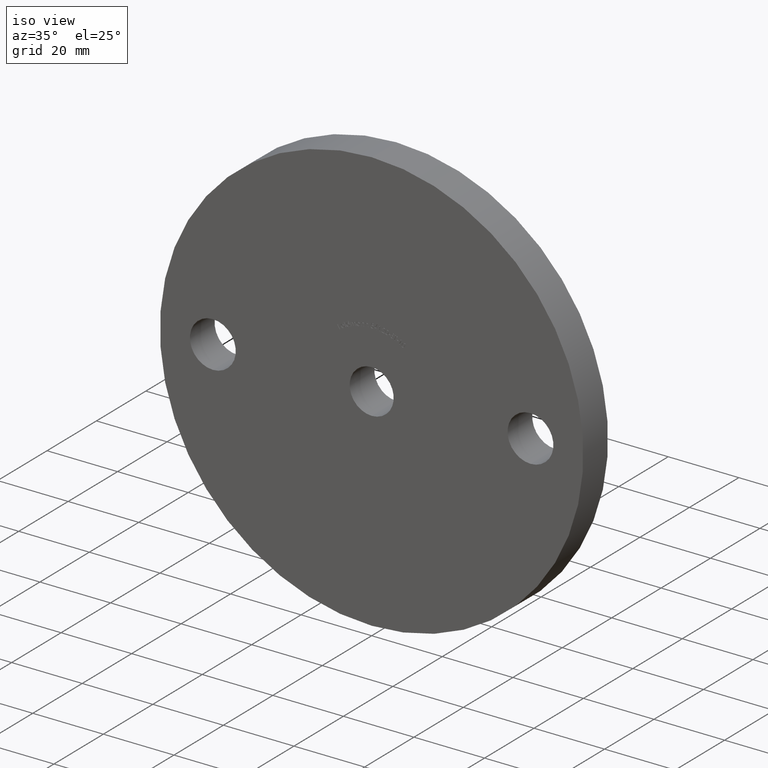
[diagram: clean part render]
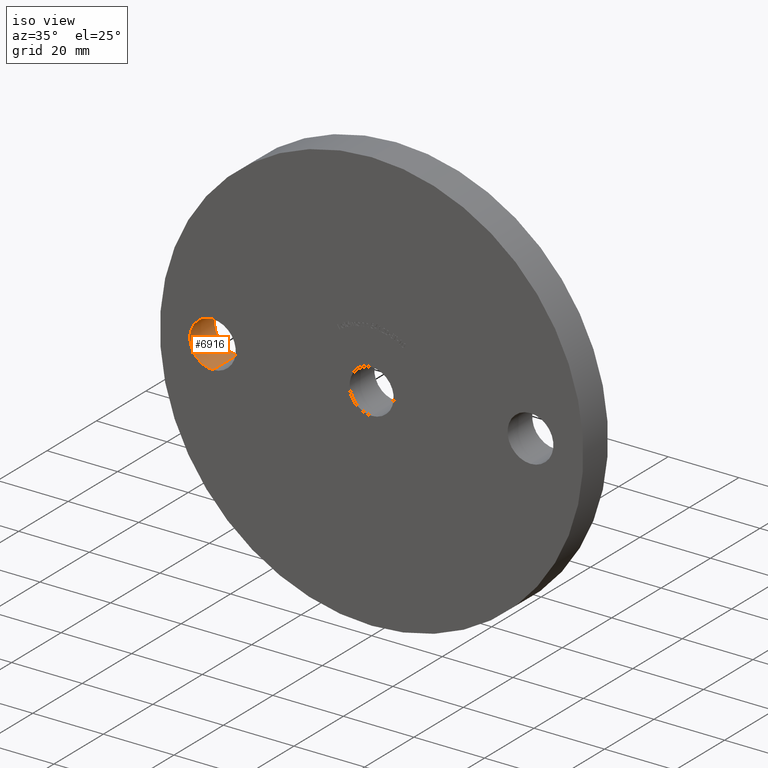
[diagram: same view with one face highlighted and labeled with its STEP entity id]
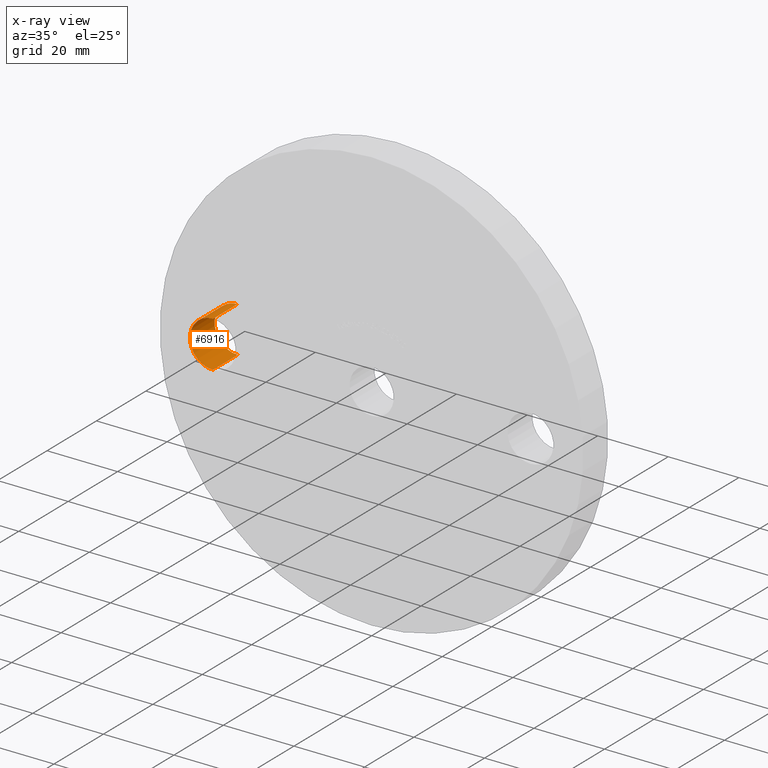
[diagram: x-ray of the same camera — body ghosted, the highlighted face saturated]
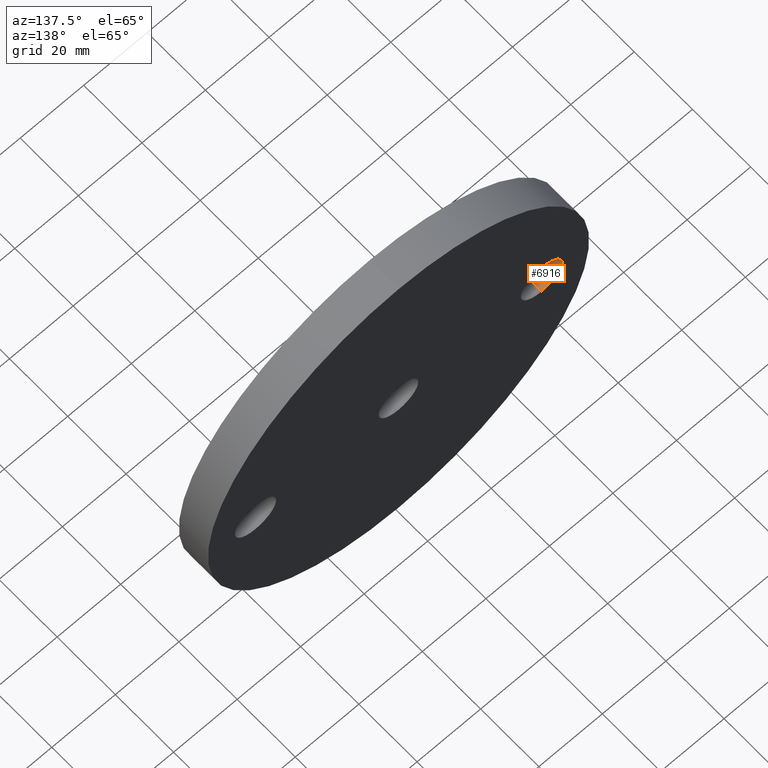
[diagram: same view with one face highlighted and labeled with its STEP entity id]
A machine part, iso view. The second image highlights one B-rep face of the part: STEP entity #6916.
The next image is the same camera in x-ray: the body ghosted, the highlighted face saturated — about 0% of this face is hidden behind the body in this view.
A second angle (auxiliary view) of the same face is appended — the face is thin or edge-on in the first view.
In plain terms, the highlighted cylindrical surface (edge-blend (fillet) strip) has radius 6.5 mm, axis along (-0, 1, -0).
Its self-contained STEP definition (entity closure, byte-faithful):
#58 = DIRECTION ( 'NONE',  ( 0.0000000000000000000, 0.0000000000000000000, 1.000000000000000000 ) ) ;
#624 = CARTESIAN_POINT ( 'NONE',  ( -45.00000000000000000, 0.0000000000000000000, 0.0000000000000000000 ) ) ;
#689 = AXIS2_PLACEMENT_3D ( 'NONE', #11815, #6906, #5960 ) ;
#756 = AXIS2_PLACEMENT_3D ( 'NONE', #624, #4565, #58 ) ;
#952 = VECTOR ( 'NONE', #4456, 1000.000000000000000 ) ;
#1104 = LINE ( 'NONE', #4503, #9968 ) ;
#1960 = CIRCLE ( 'NONE', #12141, 6.500000000000000900 ) ;
#2023 = DIRECTION ( 'NONE',  ( 0.0000000000000000000, 1.000000000000000000, 0.0000000000000000000 ) ) ;
#2081 = CARTESIAN_POINT ( 'NONE',  ( -45.00000000000000000, 0.0000000000000000000, 6.500000000000000900 ) ) ;
#2327 = ORIENTED_EDGE ( 'NONE', *, *, #7147, .F. ) ;
#2799 = CARTESIAN_POINT ( 'NONE',  ( -45.00000000000000000, 0.0000000000000000000, -6.500000000000000900 ) ) ;
#2832 = DIRECTION ( 'NONE',  ( 0.0000000000000000000, 0.0000000000000000000, 1.000000000000000000 ) ) ;
#3199 = EDGE_CURVE ( 'NONE', #4687, #12172, #1104, .T. ) ;
#3413 = CARTESIAN_POINT ( 'NONE',  ( -45.00000000000000000, 0.0000000000000000000, 6.500000000000000900 ) ) ;
#4456 = DIRECTION ( 'NONE',  ( -0.0000000000000000000, 1.000000000000000000, -0.0000000000000000000 ) ) ;
#4503 = CARTESIAN_POINT ( 'NONE',  ( -45.00000000000000000, 0.0000000000000000000, -6.500000000000000900 ) ) ;
#4565 = DIRECTION ( 'NONE',  ( -0.0000000000000000000, 1.000000000000000000, -0.0000000000000000000 ) ) ;
#4687 = VERTEX_POINT ( 'NONE', #2799 ) ;
#4718 = CYLINDRICAL_SURFACE ( 'NONE', #756, 6.500000000000000900 ) ;
#5449 = CARTESIAN_POINT ( 'NONE',  ( -45.00000000000000000, 10.00000000000000000, -6.500000000000000900 ) ) ;
#5633 = ORIENTED_EDGE ( 'NONE', *, *, #3199, .T. ) ;
#5782 = ORIENTED_EDGE ( 'NONE', *, *, #9463, .T. ) ;
#5960 = DIRECTION ( 'NONE',  ( 0.0000000000000000000, 0.0000000000000000000, 1.000000000000000000 ) ) ;
#6502 = DIRECTION ( 'NONE',  ( -0.0000000000000000000, 1.000000000000000000, -0.0000000000000000000 ) ) ;
#6906 = DIRECTION ( 'NONE',  ( 0.0000000000000000000, 1.000000000000000000, 0.0000000000000000000 ) ) ;
#6916 = ADVANCED_FACE ( 'NONE', ( #12349 ), #4718, .F. ) ;
#6927 = EDGE_LOOP ( 'NONE', ( #2327, #5633, #5782, #8092 ) ) ;
#7147 = EDGE_CURVE ( 'NONE', #4687, #11532, #1960, .T. ) ;
#8092 = ORIENTED_EDGE ( 'NONE', *, *, #12196, .F. ) ;
#8513 = CIRCLE ( 'NONE', #689, 6.500000000000000900 ) ;
#9463 = EDGE_CURVE ( 'NONE', #12172, #12273, #8513, .T. ) ;
#9968 = VECTOR ( 'NONE', #6502, 1000.000000000000000 ) ;
#10456 = CARTESIAN_POINT ( 'NONE',  ( -45.00000000000000000, 10.00000000000000000, 6.500000000000000900 ) ) ;
#10777 = CARTESIAN_POINT ( 'NONE',  ( -45.00000000000000000, 0.0000000000000000000, 0.0000000000000000000 ) ) ;
#11532 = VERTEX_POINT ( 'NONE', #2081 ) ;
#11815 = CARTESIAN_POINT ( 'NONE',  ( -45.00000000000000000, 10.00000000000000000, 0.0000000000000000000 ) ) ;
#12141 = AXIS2_PLACEMENT_3D ( 'NONE', #10777, #2023, #2832 ) ;
#12172 = VERTEX_POINT ( 'NONE', #5449 ) ;
#12196 = EDGE_CURVE ( 'NONE', #11532, #12273, #12558, .T. ) ;
#12273 = VERTEX_POINT ( 'NONE', #10456 ) ;
#12349 = FACE_OUTER_BOUND ( 'NONE', #6927, .T. ) ;
#12558 = LINE ( 'NONE', #3413, #952 ) ;